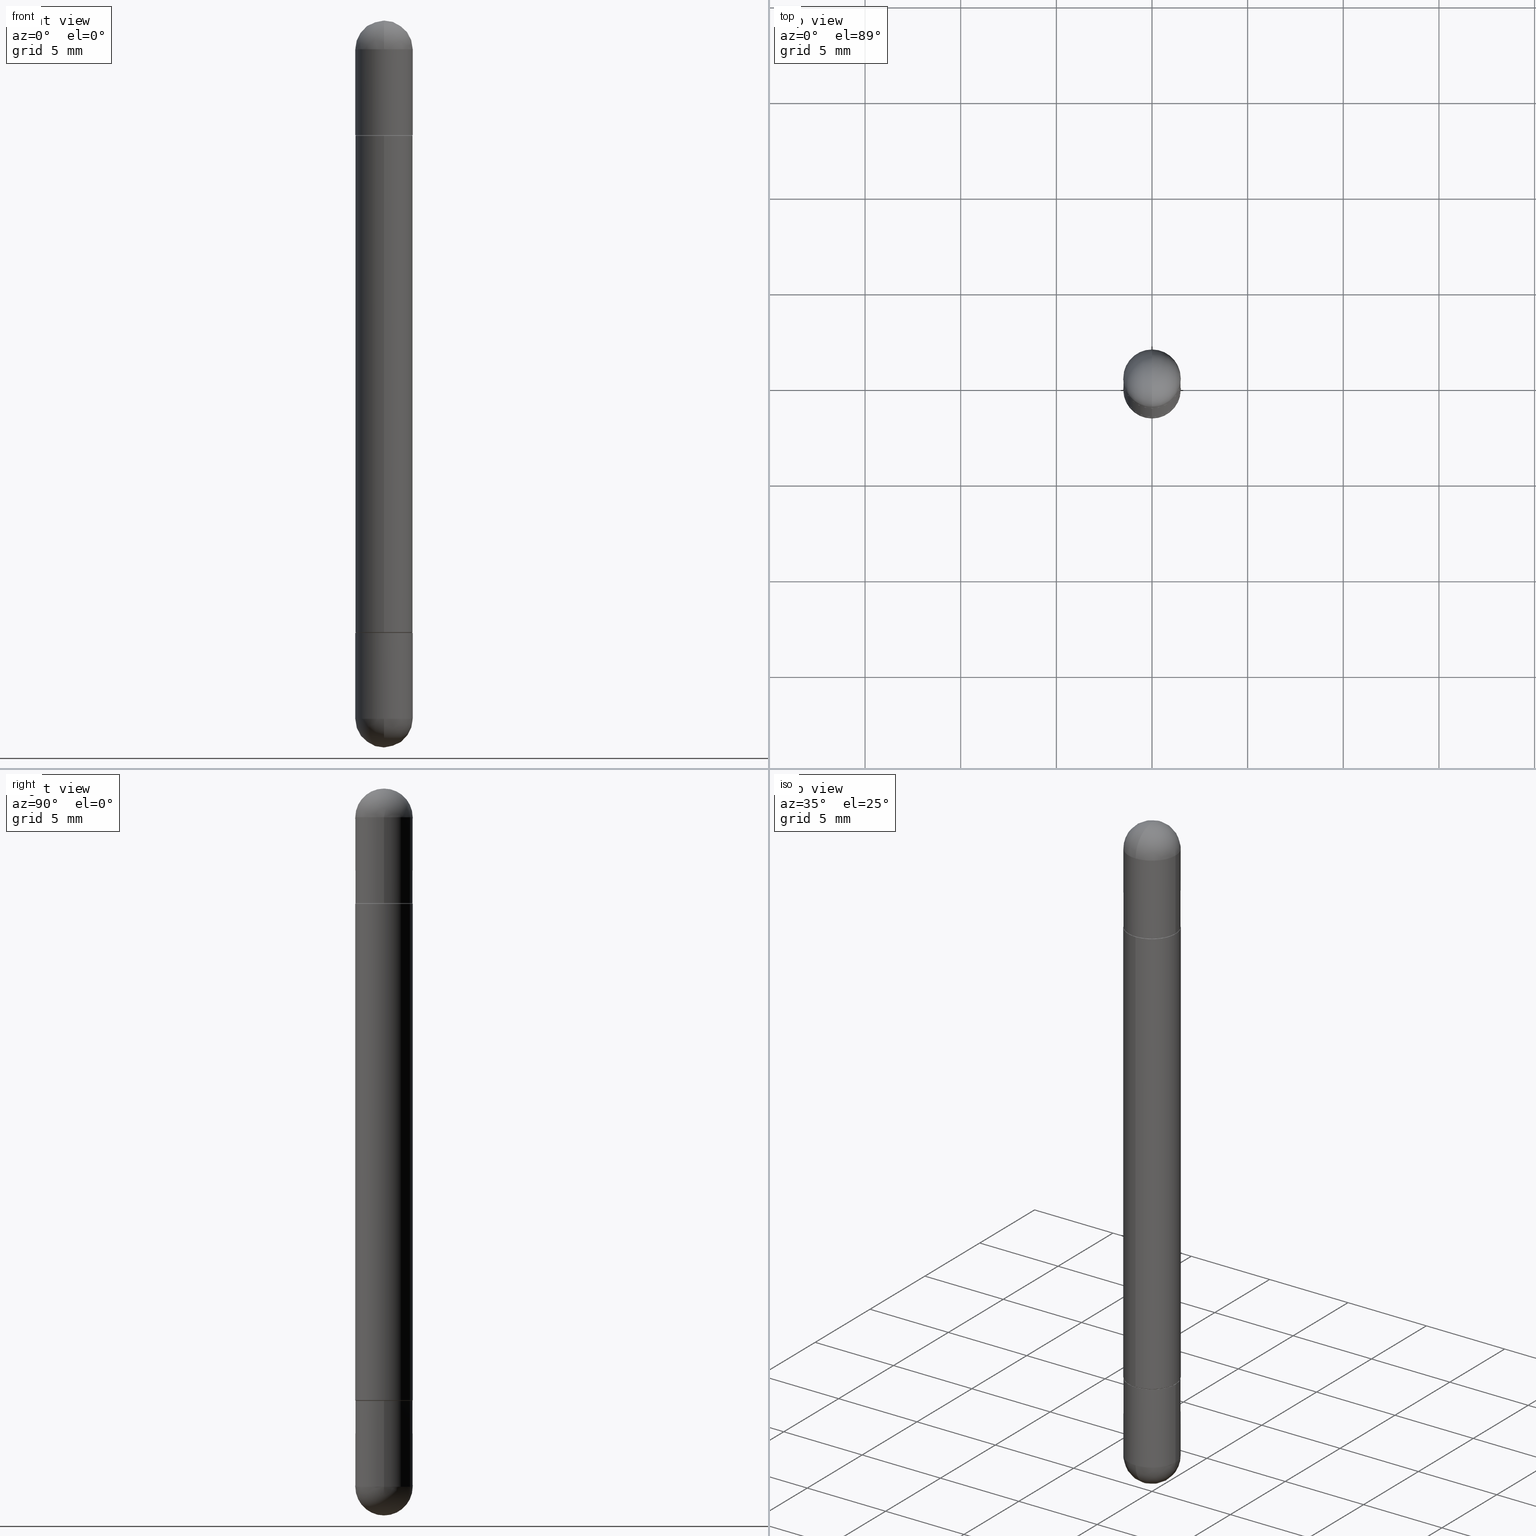
[diagram: canonical four-view strip — front | top / right | iso, engineering-drawing reading convention]
A machine part, canonical four-view strip (front | top / right | iso — engineering-drawing reading convention). The complete STEP part file that produces these views, byte-faithful:
ISO-10303-21;
HEADER;
FILE_DESCRIPTION (( 'STEP AP203' ),
    '1' );
FILE_NAME ('48951.STEP',
    '2024-03-01T12:46:38',
    ( '' ),
    ( '' ),
    'SwSTEP 2.0',
    'SolidWorks 2023',
    '' );
FILE_SCHEMA (( 'CONFIG_CONTROL_DESIGN' ));
ENDSEC;

DATA;
#1 = CLOSED_SHELL ( 'NONE', ( #82, #312, #528, #438, #799, #202 ) ) ;
#2 = CIRCLE ( 'NONE', #414, 0.05905000000000013710 ) ;
#3 = DIRECTION ( 'NONE',  ( 1.000000000000000000, -6.982962677686270655E-15, 0.000000000000000000 ) ) ;
#4 = AXIS2_PLACEMENT_3D ( 'NONE', #485, #425, #190 ) ;
#5 = EDGE_CURVE ( 'NONE', #430, #36, #602, .T. ) ;
#6 = DATE_TIME_ROLE ( 'creation_date' ) ;
#7 = FACE_OUTER_BOUND ( 'NONE', #288, .T. ) ;
#8 = PERSON_AND_ORGANIZATION ( #791, #520 ) ;
#9 = EDGE_CURVE ( 'NONE', #472, #302, #14, .T. ) ;
#10 = DIRECTION ( 'NONE',  ( -2.445468806185136597E-29, 3.491481338843145583E-15, -1.000000000000000000 ) ) ;
#11 = DIRECTION ( 'NONE',  ( 2.438088387897960049E-29, -3.491481338843145188E-15, -1.000000000000000000 ) ) ;
#12 = CC_DESIGN_PERSON_AND_ORGANIZATION_ASSIGNMENT ( #439, #700, ( #29 ) ) ;
#13 = CARTESIAN_POINT ( 'NONE',  ( -0.05905000000000001914, -4.288599812930171320E-15, -1.259899999999999798 ) ) ;
#14 = CIRCLE ( 'NONE', #476, 0.05804999999999999744 ) ;
#15 = AXIS2_PLACEMENT_3D ( 'NONE', #220, #669, #93 ) ;
#16 = AXIS2_PLACEMENT_3D ( 'NONE', #516, #219, #273 ) ;
#17 = CARTESIAN_POINT ( 'NONE',  ( 3.088015164772485743E-29, -4.381943779588710480E-15, -1.258900000000000130 ) ) ;
#18 = CARTESIAN_POINT ( 'NONE',  ( 3.088015164772485743E-29, -4.381943779588710480E-15, -0.2372000000000001330 ) ) ;
#19 = DIRECTION ( 'NONE',  ( 1.000000000000000000, -6.982962677686270655E-15, 0.000000000000000000 ) ) ;
#20 = EDGE_CURVE ( 'NONE', #92, #427, #290, .T. ) ;
#21 = LINE ( 'NONE', #780, #403 ) ;
#22 = CARTESIAN_POINT ( 'NONE',  ( 4.051124067684094106E-16, 0.05905000000000007465, -1.496099999999999985 ) ) ;
#23 = ORIENTED_EDGE ( 'NONE', *, *, #186, .T. ) ;
#24 = LINE ( 'NONE', #468, #251 ) ;
#25 = ORIENTED_EDGE ( 'NONE', *, *, #569, .F. ) ;
#26 = CYLINDRICAL_SURFACE ( 'NONE', #769, 0.05905000000000007465 ) ;
#27 = ADVANCED_FACE ( 'NONE', ( #75 ), #653, .T. ) ;
#28 = VECTOR ( 'NONE', #165, 39.37007874015748143 ) ;
#29 = PRODUCT_DEFINITION ( 'UNKNOWN', '', #458, #810 ) ;
#30 = CIRCLE ( 'NONE', #637, 0.05905000000000025506 ) ;
#31 = ORIENTED_EDGE ( 'NONE', *, *, #234, .F. ) ;
#32 = ORIENTED_EDGE ( 'NONE', *, *, #692, .F. ) ;
#33 =( NAMED_UNIT ( * ) PLANE_ANGLE_UNIT ( ) SI_UNIT ( $, .RADIAN. ) );
#34 = ORIENTED_EDGE ( 'NONE', *, *, #662, .F. ) ;
#35 = ORIENTED_EDGE ( 'NONE', *, *, #344, .F. ) ;
#36 = VERTEX_POINT ( 'NONE', #86 ) ;
#37 = CARTESIAN_POINT ( 'NONE',  ( -0.05905000000000001914, -4.288599812930171320E-15, -1.437049999999999939 ) ) ;
#38 = APPLICATION_CONTEXT ( 'configuration controlled 3d designs of mechanical parts and assemblies' ) ;
#39 = ORIENTED_EDGE ( 'NONE', *, *, #389, .T. ) ;
#40 = EDGE_LOOP ( 'NONE', ( #604, #366, #283, #45 ) ) ;
#41 = CLOSED_SHELL ( 'NONE', ( #151, #690, #332, #162, #697, #223, #399, #164 ) ) ;
#42 = DIRECTION ( 'NONE',  ( 0.000000000000000000, 0.000000000000000000, 1.000000000000000000 ) ) ;
#43 = AXIS2_PLACEMENT_3D ( 'NONE', #65, #451, #72 ) ;
#44 = CONICAL_SURFACE ( 'NONE', #801, 0.05804999999999999744, 0.7853981633976190313 ) ;
#45 = ORIENTED_EDGE ( 'NONE', *, *, #286, .F. ) ;
#46 = LOCAL_TIME ( 7, 46, 38.00000000000000000, #391 ) ;
#47 = VERTEX_POINT ( 'NONE', #719 ) ;
#48 = ADVANCED_FACE ( 'NONE', ( #526 ), #304, .F. ) ;
#49 = CARTESIAN_POINT ( 'NONE',  ( 3.514260947928350449E-29, -5.017433257984542594E-15, -1.437049999999999939 ) ) ;
#50 = VERTEX_POINT ( 'NONE', #796 ) ;
#51 = SPHERICAL_SURFACE ( 'NONE', #351, 0.05905000000000025506 ) ;
#52 = EDGE_LOOP ( 'NONE', ( #423, #589, #533, #681 ) ) ;
#53 = ORIENTED_EDGE ( 'NONE', *, *, #626, .F. ) ;
#54 = DIRECTION ( 'NONE',  ( 1.000000000000000000, -6.982962677686270655E-15, 0.000000000000000000 ) ) ;
#55 = LINE ( 'NONE', #462, #102 ) ;
#56 = ORIENTED_EDGE ( 'NONE', *, *, #364, .T. ) ;
#57 = CARTESIAN_POINT ( 'NONE',  ( 3.183141170014464762E-29, -5.491615626124592102E-15, -1.437049999999999939 ) ) ;
#58 = ADVANCED_FACE ( 'NONE', ( #737 ), #542, .T. ) ;
#59 = AXIS2_PLACEMENT_3D ( 'NONE', #158, #670, #170 ) ;
#60 = DIRECTION ( 'NONE',  ( 1.000000000000000000, -6.982962677686266711E-15, 4.876176775795935793E-29 ) ) ;
#61 = AXIS2_PLACEMENT_3D ( 'NONE', #188, #42, #748 ) ;
#62 = DIRECTION ( 'NONE',  ( -1.000000000000000000, 6.982962677686265922E-15, -4.883557194083112340E-29 ) ) ;
#63 = CC_DESIGN_APPROVAL ( #370, ( #135 ) ) ;
#64 = CALENDAR_DATE ( 2024, 1, 3 ) ;
#65 = CARTESIAN_POINT ( 'NONE',  ( 3.090468111920608031E-29, -4.385424551516256277E-15, -0.2362000000000003264 ) ) ;
#66 = DATE_AND_TIME ( #64, #119 ) ;
#67 = CARTESIAN_POINT ( 'NONE',  ( 0.05905000000000001914, -5.120519244513884944E-15, -0.05905000000000028976 ) ) ;
#68 = EDGE_CURVE ( 'NONE', #785, #313, #157, .T. ) ;
#69 = CARTESIAN_POINT ( 'NONE',  ( 3.081046148912652946E-29, -4.398917338808479031E-15, -1.259899999999999798 ) ) ;
#70 = DIRECTION ( 'NONE',  ( 1.000000000000000000, -6.860497997771530774E-15, -4.840798879624142912E-29 ) ) ;
#71 = AXIS2_PLACEMENT_3D ( 'NONE', #129, #248, #60 ) ;
#72 = DIRECTION ( 'NONE',  ( -6.982962677686265922E-15, -1.000000000000000000, -3.529519371659254850E-15 ) ) ;
#73 = EDGE_LOOP ( 'NONE', ( #236, #732 ) ) ;
#74 = AXIS2_PLACEMENT_3D ( 'NONE', #806, #434, #245 ) ;
#75 = FACE_OUTER_BOUND ( 'NONE', #490, .T. ) ;
#76 = CARTESIAN_POINT ( 'NONE',  ( 0.000000000000000000, 0.000000000000000000, -1.496100000000000207 ) ) ;
#77 = DIRECTION ( 'NONE',  ( -1.000000000000000000, 6.982962677686265922E-15, 4.883557194083112340E-29 ) ) ;
#78 = DIRECTION ( 'NONE',  ( 2.438088387897960049E-29, -3.491481338843145188E-15, 1.000000000000000000 ) ) ;
#79 = CARTESIAN_POINT ( 'NONE',  ( 3.514260947928350449E-29, -5.017433257984542594E-15, -0.05905000000000028976 ) ) ;
#80 = CARTESIAN_POINT ( 'NONE',  ( -4.053609834396568584E-16, -0.05805000000000438282, -0.2362000000000005484 ) ) ;
#81 = EDGE_CURVE ( 'NONE', #427, #356, #635, .T. ) ;
#82 = ADVANCED_FACE ( 'NONE', ( #612 ), #685, .T. ) ;
#83 = AXIS2_PLACEMENT_3D ( 'NONE', #566, #397, #716 ) ;
#84 = VECTOR ( 'NONE', #383, 39.37007874015748143 ) ;
#85 = AXIS2_PLACEMENT_3D ( 'NONE', #418, #109, #789 ) ;
#86 = CARTESIAN_POINT ( 'NONE',  ( 4.123439461174084467E-16, 0.05904999999999487742, -1.437050000000000161 ) ) ;
#87 = ORIENTED_EDGE ( 'NONE', *, *, #786, .T. ) ;
#88 = CARTESIAN_POINT ( 'NONE',  ( 4.123439461174084467E-16, 0.05904999999999487742, -0.05905000000000008159 ) ) ;
#89 = DIRECTION ( 'NONE',  ( -2.452947148123349933E-29, 3.480771927546834282E-15, -1.000000000000000000 ) ) ;
#90 = LINE ( 'NONE', #741, #507 ) ;
#91 = DIRECTION ( 'NONE',  ( 2.445468806185136597E-29, -3.491481338843145583E-15, 1.000000000000000000 ) ) ;
#92 = VERTEX_POINT ( 'NONE', #67 ) ;
#93 = DIRECTION ( 'NONE',  ( 1.000000000000000000, -6.982962677686266711E-15, 0.000000000000000000 ) ) ;
#94 = EDGE_CURVE ( 'NONE', #356, #313, #329, .T. ) ;
#95 = ADVANCED_FACE ( 'NONE', ( #206 ), #140, .T. ) ;
#96 = ORIENTED_EDGE ( 'NONE', *, *, #506, .T. ) ;
#97 = CYLINDRICAL_SURFACE ( 'NONE', #85, 0.05905000000000001914 ) ;
#98 = DIRECTION ( 'NONE',  ( 1.000000000000000000, -6.982962677686265922E-15, -4.883557194083112340E-29 ) ) ;
#99 = ORIENTED_EDGE ( 'NONE', *, *, #364, .F. ) ;
#100 = CONICAL_SURFACE ( 'NONE', #677, 0.05804999999999999744, 0.7853981633976190313 ) ;
#101 = EDGE_LOOP ( 'NONE', ( #657, #216, #674, #116, #105 ) ) ;
#102 = VECTOR ( 'NONE', #152, 39.37007874015748143 ) ;
#103 = DIRECTION ( 'NONE',  ( 1.000000000000000000, -6.982962677686270655E-15, 0.000000000000000000 ) ) ;
#104 = CC_DESIGN_APPROVAL ( #341, ( #458 ) ) ;
#105 = ORIENTED_EDGE ( 'NONE', *, *, #545, .T. ) ;
#106 = CARTESIAN_POINT ( 'NONE',  ( 4.051124067684401762E-16, 0.05904999999999747257, -0.7480500000000001037 ) ) ;
#107 = ORIENTED_EDGE ( 'NONE', *, *, #482, .F. ) ;
#108 = VERTEX_POINT ( 'NONE', #201 ) ;
#109 = DIRECTION ( 'NONE',  ( -2.445468806185136597E-29, 3.491481338843145583E-15, -1.000000000000000000 ) ) ;
#110 = CARTESIAN_POINT ( 'NONE',  ( 3.982519087706682190E-16, 0.05804999999999560512, -0.2362000000000001321 ) ) ;
#111 = CARTESIAN_POINT ( 'NONE',  ( 0.000000000000000000, 0.000000000000000000, -1.496100000000000207 ) ) ;
#112 = VERTEX_POINT ( 'NONE', #628 ) ;
#113 = EDGE_CURVE ( 'NONE', #360, #36, #146, .T. ) ;
#114 = ORIENTED_EDGE ( 'NONE', *, *, #344, .T. ) ;
#115 = CARTESIAN_POINT ( 'NONE',  ( -0.05905000000000001914, 4.195754854663392958E-16, -2.904631170795522943E-30 ) ) ;
#116 = ORIENTED_EDGE ( 'NONE', *, *, #706, .T. ) ;
#117 = AXIS2_PLACEMENT_3D ( 'NONE', #447, #646, #452 ) ;
#118 = CIRCLE ( 'NONE', #199, 0.05905000000000001914 ) ;
#119 = LOCAL_TIME ( 7, 46, 38.00000000000000000, #639 ) ;
#120 = CARTESIAN_POINT ( 'NONE',  ( 3.330070981488499955E-29, -5.694171829508798064E-15, -1.496100000000000207 ) ) ;
#121 = ORIENTED_EDGE ( 'NONE', *, *, #171, .T. ) ;
#122 = ORIENTED_EDGE ( 'NONE', *, *, #482, .T. ) ;
#123 = VERTEX_POINT ( 'NONE', #493 ) ;
#124 = DIMENSIONAL_EXPONENTS ( 1.000000000000000000, 0.000000000000000000, 0.000000000000000000, 0.000000000000000000, 0.000000000000000000, 0.000000000000000000, 0.000000000000000000 ) ;
#125 = DIRECTION ( 'NONE',  ( -2.452947148123349933E-29, 3.480771927546834282E-15, 1.000000000000000000 ) ) ;
#126 = EDGE_CURVE ( 'NONE', #746, #50, #2, .T. ) ;
#127 = ORIENTED_EDGE ( 'NONE', *, *, #179, .F. ) ;
#128 = FACE_OUTER_BOUND ( 'NONE', #309, .T. ) ;
#129 = CARTESIAN_POINT ( 'NONE',  ( 0.000000000000000000, 0.000000000000000000, 0.000000000000000000 ) ) ;
#130 = FACE_OUTER_BOUND ( 'NONE', #666, .T. ) ;
#131 = AXIS2_PLACEMENT_3D ( 'NONE', #634, #145, #774 ) ;
#132 = AXIS2_PLACEMENT_3D ( 'NONE', #269, #375, #441 ) ;
#133 = FACE_OUTER_BOUND ( 'NONE', #557, .T. ) ;
#134 = AXIS2_PLACEMENT_3D ( 'NONE', #233, #287, #730 ) ;
#135 = SECURITY_CLASSIFICATION ( '', '', #705 ) ;
#136 = EDGE_CURVE ( 'NONE', #153, #683, #214, .T. ) ;
#137 = FACE_OUTER_BOUND ( 'NONE', #465, .T. ) ;
#138 = FACE_OUTER_BOUND ( 'NONE', #798, .T. ) ;
#139 = DIRECTION ( 'NONE',  ( -6.982962677686265922E-15, -1.000000000000000000, -3.529519371659254850E-15 ) ) ;
#140 = CYLINDRICAL_SURFACE ( 'NONE', #71, 0.05905000000000001914 ) ;
#141 = PRODUCT_RELATED_PRODUCT_CATEGORY ( 'detail', '', ( #734 ) ) ;
#142 = DIRECTION ( 'NONE',  ( -2.445468806185136597E-29, 3.491481338843145583E-15, 1.000000000000000000 ) ) ;
#143 = DATE_AND_TIME ( #322, #723 ) ;
#144 =( CONVERSION_BASED_UNIT ( 'INCH', #711 ) LENGTH_UNIT ( ) NAMED_UNIT ( #124 ) );
#145 = DIRECTION ( 'NONE',  ( 2.445468806185136597E-29, -3.491481338843145583E-15, 1.000000000000000000 ) ) ;
#146 = CIRCLE ( 'NONE', #393, 0.05905000000000001914 ) ;
#147 = DIRECTION ( 'NONE',  ( 2.445468806185136597E-29, -3.491481338843145583E-15, 1.000000000000000000 ) ) ;
#148 = VECTOR ( 'NONE', #739, 39.37007874015748143 ) ;
#149 = FACE_OUTER_BOUND ( 'NONE', #623, .T. ) ;
#150 = SPHERICAL_SURFACE ( 'NONE', #544, 0.05905000000000025506 ) ;
#151 = ADVANCED_FACE ( 'NONE', ( #572 ), #529, .T. ) ;
#152 = DIRECTION ( 'NONE',  ( -4.937700262165390546E-15, -0.7071067811866658115, 0.7071067811864292230 ) ) ;
#153 = VERTEX_POINT ( 'NONE', #440 ) ;
#154 = CARTESIAN_POINT ( 'NONE',  ( 3.514260947928350449E-29, -5.017433257984542594E-15, -1.437049999999999939 ) ) ;
#155 = DIRECTION ( 'NONE',  ( -2.445468806185136877E-29, 3.491481338843145188E-15, -1.000000000000000000 ) ) ;
#156 = ORIENTED_EDGE ( 'NONE', *, *, #136, .F. ) ;
#157 = CIRCLE ( 'NONE', #464, 0.05905000000000025506 ) ;
#158 = CARTESIAN_POINT ( 'NONE',  ( 0.000000000000000000, 0.000000000000000000, -1.496100000000000207 ) ) ;
#159 = AXIS2_PLACEMENT_3D ( 'NONE', #259, #770, #645 ) ;
#160 = AXIS2_PLACEMENT_3D ( 'NONE', #353, #297, #183 ) ;
#161 = VERTEX_POINT ( 'NONE', #701 ) ;
#162 = ADVANCED_FACE ( 'NONE', ( #133 ), #382, .F. ) ;
#163 = DATE_AND_TIME ( #168, #694 ) ;
#164 = ADVANCED_FACE ( 'NONE', ( #138 ), #386, .F. ) ;
#165 = DIRECTION ( 'NONE',  ( 4.851104656541791790E-15, 0.7071067811866706965, -0.7071067811864243380 ) ) ;
#166 = PRODUCT_DEFINITION_SHAPE ( 'NONE', 'NONE',  #29 ) ;
#167 = DIRECTION ( 'NONE',  ( 1.000000000000000000, -6.982962677686270655E-15, 0.000000000000000000 ) ) ;
#168 = CALENDAR_DATE ( 2024, 1, 3 ) ;
#169 = CC_DESIGN_DATE_AND_TIME_ASSIGNMENT ( #648, #333, ( #135 ) ) ;
#170 = DIRECTION ( 'NONE',  ( -6.982962677686265922E-15, -1.000000000000000000, -4.626330217890363814E-15 ) ) ;
#171 = EDGE_CURVE ( 'NONE', #50, #746, #349, .T. ) ;
#172 = VERTEX_POINT ( 'NONE', #665 ) ;
#173 = ORIENTED_EDGE ( 'NONE', *, *, #755, .F. ) ;
#174 = CARTESIAN_POINT ( 'NONE',  ( 4.124700581087689546E-16, 0.05804999999999560512, -1.259900000000000020 ) ) ;
#175 = DIRECTION ( 'NONE',  ( 1.000000000000000000, -6.860497997771530774E-15, -4.840798879624142912E-29 ) ) ;
#176 = CARTESIAN_POINT ( 'NONE',  ( 3.183141170014464762E-29, -5.491615626124592102E-15, -0.05905000000000028976 ) ) ;
#177 = ORIENTED_EDGE ( 'NONE', *, *, #94, .T. ) ;
#178 = AXIS2_PLACEMENT_3D ( 'NONE', #310, #549, #818 ) ;
#179 = EDGE_CURVE ( 'NONE', #205, #172, #90, .T. ) ;
#180 = ORIENTED_EDGE ( 'NONE', *, *, #682, .F. ) ;
#181 = VECTOR ( 'NONE', #610, 39.37007874015748143 ) ;
#182 = FACE_OUTER_BOUND ( 'NONE', #618, .T. ) ;
#183 = DIRECTION ( 'NONE',  ( 1.000000000000000000, -6.982962677686270655E-15, 0.000000000000000000 ) ) ;
#184 = DIRECTION ( 'NONE',  ( -1.000000000000000000, 0.000000000000000000, 0.000000000000000000 ) ) ;
#185 = ORIENTED_EDGE ( 'NONE', *, *, #499, .F. ) ;
#186 = EDGE_CURVE ( 'NONE', #47, #376, #560, .T. ) ;
#187 = ORIENTED_EDGE ( 'NONE', *, *, #282, .T. ) ;
#188 = CARTESIAN_POINT ( 'NONE',  ( 0.000000000000000000, 0.000000000000000000, -0.7480500000000001037 ) ) ;
#189 = DIRECTION ( 'NONE',  ( -2.452947148123349933E-29, 3.480771927546834282E-15, -1.000000000000000000 ) ) ;
#190 = DIRECTION ( 'NONE',  ( -1.000000000000000000, 0.000000000000000000, 0.000000000000000000 ) ) ;
#191 = DIRECTION ( 'NONE',  ( 6.982962677686265922E-15, 1.000000000000000000, 3.469747663417762014E-15 ) ) ;
#192 = DIRECTION ( 'NONE',  ( -0.000000000000000000, -0.000000000000000000, -1.000000000000000000 ) ) ;
#193 = DIRECTION ( 'NONE',  ( 6.982962677686266711E-15, 1.000000000000000000, 0.000000000000000000 ) ) ;
#194 = CARTESIAN_POINT ( 'NONE',  ( 3.088015164772485743E-29, -4.381943779588710480E-15, -0.2372000000000001330 ) ) ;
#195 = VERTEX_POINT ( 'NONE', #405 ) ;
#196 = APPROVAL_ROLE ( '' ) ;
#197 = CLOSED_SHELL ( 'NONE', ( #788, #487, #450, #48, #584 ) ) ;
#198 = AXIS2_PLACEMENT_3D ( 'NONE', #708, #255, #139 ) ;
#199 = AXIS2_PLACEMENT_3D ( 'NONE', #524, #271, #167 ) ;
#200 = DIRECTION ( 'NONE',  ( 2.452947148123349933E-29, -3.480771927546834282E-15, 1.000000000000000000 ) ) ;
#201 = CARTESIAN_POINT ( 'NONE',  ( 4.051124067684407185E-16, 0.05904999999999575866, -0.2371999999999999387 ) ) ;
#202 = ADVANCED_FACE ( 'NONE', ( #471 ), #463, .T. ) ;
#203 = DIRECTION ( 'NONE',  ( -6.982962677686265922E-15, -1.000000000000000000, -3.469747663417769114E-15 ) ) ;
#204 = PERSON_AND_ORGANIZATION ( #791, #520 ) ;
#205 = VERTEX_POINT ( 'NONE', #80 ) ;
#206 = FACE_OUTER_BOUND ( 'NONE', #548, .T. ) ;
#207 = CARTESIAN_POINT ( 'NONE',  ( 3.514260947928350449E-29, -5.017433257984542594E-15, -0.05905000000000028976 ) ) ;
#208 = MANIFOLD_SOLID_BREP ( 'Mirror4[4]', #676 ) ;
#209 = MANIFOLD_SOLID_BREP ( 'Combine1', #41 ) ;
#210 = CARTESIAN_POINT ( 'NONE',  ( -4.123439461173745257E-16, -0.05905000000000007465, -1.496100000000000430 ) ) ;
#211 = PERSON_AND_ORGANIZATION_ROLE ( 'design_supplier' ) ;
#212 = DIRECTION ( 'NONE',  ( 2.445468806185136597E-29, -3.491481338843145583E-15, 1.000000000000000000 ) ) ;
#213 = AXIS2_PLACEMENT_3D ( 'NONE', #754, #254, #775 ) ;
#214 = LINE ( 'NONE', #326, #651 ) ;
#215 = CONICAL_SURFACE ( 'NONE', #680, 0.05804999999999999744, 0.7853981633976190313 ) ;
#216 = ORIENTED_EDGE ( 'NONE', *, *, #81, .F. ) ;
#217 = PERSON_AND_ORGANIZATION_ROLE ( 'classification_officer' ) ;
#218 = DIRECTION ( 'NONE',  ( -2.445468806185136597E-29, 3.491481338843145583E-15, 1.000000000000000000 ) ) ;
#219 = DIRECTION ( 'NONE',  ( 1.000000000000000000, -6.982962677686265922E-15, -4.883557194083112340E-29 ) ) ;
#220 = CARTESIAN_POINT ( 'NONE',  ( 0.000000000000000000, 0.000000000000000000, -1.496100000000000207 ) ) ;
#221 = CARTESIAN_POINT ( 'NONE',  ( -0.05905000000000001914, -4.303062891628101254E-15, -0.2362000000000003264 ) ) ;
#222 = CIRCLE ( 'NONE', #198, 0.05804999999999999744 ) ;
#223 = ADVANCED_FACE ( 'NONE', ( #717 ), #26, .T. ) ;
#224 = AXIS2_PLACEMENT_3D ( 'NONE', #79, #267, #278 ) ;
#225 = CARTESIAN_POINT ( 'NONE',  ( 0.000000000000000000, 0.000000000000000000, -1.496100000000000207 ) ) ;
#226 = APPROVAL_PERSON_ORGANIZATION ( #580, #370, #725 ) ;
#227 = SPHERICAL_SURFACE ( 'NONE', #691, 0.05905000000000025506 ) ;
#228 = ORIENTED_EDGE ( 'NONE', *, *, #247, .F. ) ;
#229 = ADVANCED_FACE ( 'NONE', ( #348 ), #412, .F. ) ;
#230 = DIRECTION ( 'NONE',  ( 2.452947148123349933E-29, -3.480771927546834282E-15, 1.000000000000000000 ) ) ;
#231 = DIRECTION ( 'NONE',  ( -2.445468806185136597E-29, 3.491481338843145583E-15, 1.000000000000000000 ) ) ;
#232 = VECTOR ( 'NONE', #325, 39.37007874015748143 ) ;
#233 = CARTESIAN_POINT ( 'NONE',  ( 3.090468111920608031E-29, -4.385424551516256277E-15, -1.259899999999999798 ) ) ;
#234 = EDGE_CURVE ( 'NONE', #302, #161, #24, .T. ) ;
#235 = LINE ( 'NONE', #538, #148 ) ;
#236 = ORIENTED_EDGE ( 'NONE', *, *, #545, .F. ) ;
#237 = EDGE_CURVE ( 'NONE', #313, #92, #367, .T. ) ;
#238 = AXIS2_PLACEMENT_3D ( 'NONE', #809, #750, #193 ) ;
#239 = CARTESIAN_POINT ( 'NONE',  ( 4.123439461174084467E-16, 0.05904999999999487742, -0.05905000000000008159 ) ) ;
#240 = EDGE_LOOP ( 'NONE', ( #23, #87, #693, #107 ) ) ;
#241 = CIRCLE ( 'NONE', #477, 0.05905000000000001914 ) ;
#242 = AXIS2_PLACEMENT_3D ( 'NONE', #509, #212, #445 ) ;
#243 = DIRECTION ( 'NONE',  ( -6.982962677686266711E-15, -1.000000000000000000, 0.000000000000000000 ) ) ;
#244 = DIRECTION ( 'NONE',  ( -2.445468806185136597E-29, 3.491481338843145583E-15, -1.000000000000000000 ) ) ;
#245 = DIRECTION ( 'NONE',  ( 1.000000000000000000, -6.982962677686270655E-15, 0.000000000000000000 ) ) ;
#246 = ORIENTED_EDGE ( 'NONE', *, *, #655, .F. ) ;
#247 = EDGE_CURVE ( 'NONE', #36, #562, #606, .T. ) ;
#248 = DIRECTION ( 'NONE',  ( -2.445468806185136597E-29, 3.491481338843145583E-15, 1.000000000000000000 ) ) ;
#249 = PLANE ( 'NONE',  #415 ) ;
#250 = EDGE_LOOP ( 'NONE', ( #647, #343, #122, #311 ) ) ;
#251 = VECTOR ( 'NONE', #336, 39.37007874015748143 ) ;
#252 = ORIENTED_EDGE ( 'NONE', *, *, #597, .F. ) ;
#253 = VECTOR ( 'NONE', #561, 39.37007874015748143 ) ;
#254 = DIRECTION ( 'NONE',  ( 2.445468806185136597E-29, -3.491481338843145583E-15, 1.000000000000000000 ) ) ;
#255 = DIRECTION ( 'NONE',  ( 2.452947148123349933E-29, -3.480771927546834282E-15, 1.000000000000000000 ) ) ;
#256 = FACE_OUTER_BOUND ( 'NONE', #250, .T. ) ;
#257 = LINE ( 'NONE', #577, #232 ) ;
#258 = APPROVAL_ROLE ( '' ) ;
#259 = CARTESIAN_POINT ( 'NONE',  ( 3.183141170014464762E-29, -5.491615626124592102E-15, -1.437049999999999939 ) ) ;
#260 = EDGE_CURVE ( 'NONE', #472, #535, #591, .T. ) ;
#261 = CIRCLE ( 'NONE', #117, 0.05905000000000001914 ) ;
#262 = CARTESIAN_POINT ( 'NONE',  ( 3.090468111920608031E-29, -4.385424551516256277E-15, -1.259899999999999798 ) ) ;
#263 = AXIS2_PLACEMENT_3D ( 'NONE', #767, #633, #643 ) ;
#264 = DIRECTION ( 'NONE',  ( -6.982962677686265922E-15, -1.000000000000000000, -3.529519371659254850E-15 ) ) ;
#265 = CARTESIAN_POINT ( 'NONE',  ( 3.090468111920608031E-29, -4.385424551516256277E-15, -0.2362000000000003264 ) ) ;
#266 = ADVANCED_FACE ( 'NONE', ( #583 ), #150, .T. ) ;
#267 = DIRECTION ( 'NONE',  ( 2.445468806185136597E-29, -3.491481338843145583E-15, 1.000000000000000000 ) ) ;
#268 = CC_DESIGN_PERSON_AND_ORGANIZATION_ASSIGNMENT ( #501, #512, ( #458 ) ) ;
#269 = CARTESIAN_POINT ( 'NONE',  ( 3.088015164772485743E-29, -4.381943779588710480E-15, -0.2372000000000001330 ) ) ;
#270 = DIRECTION ( 'NONE',  ( -1.000000000000000000, 7.105427357601001070E-15, -4.926315508542082329E-29 ) ) ;
#271 = DIRECTION ( 'NONE',  ( -2.445468806185136597E-29, 3.491481338843145583E-15, 1.000000000000000000 ) ) ;
#272 = CIRCLE ( 'NONE', #292, 0.05905000000000025506 ) ;
#273 = DIRECTION ( 'NONE',  ( 6.982962677686265922E-15, 1.000000000000000000, 3.469747663417762014E-15 ) ) ;
#274 = AXIS2_PLACEMENT_3D ( 'NONE', #459, #70, #578 ) ;
#275 = DIRECTION ( 'NONE',  ( -6.982962677686265922E-15, -1.000000000000000000, -3.529519371659254850E-15 ) ) ;
#276 = APPROVAL_PERSON_ORGANIZATION ( #709, #611, #196 ) ;
#277 = DIRECTION ( 'NONE',  ( -2.452947148123349933E-29, 3.480771927546834282E-15, -1.000000000000000000 ) ) ;
#278 = DIRECTION ( 'NONE',  ( 1.000000000000000000, -6.982962677686270655E-15, 0.000000000000000000 ) ) ;
#279 = ORIENTED_EDGE ( 'NONE', *, *, #402, .F. ) ;
#280 = DIRECTION ( 'NONE',  ( 2.445468806185136597E-29, -3.491481338843145583E-15, 1.000000000000000000 ) ) ;
#281 = DIRECTION ( 'NONE',  ( -2.452947148123350213E-29, 3.480771927546833888E-15, -1.000000000000000000 ) ) ;
#282 = EDGE_CURVE ( 'NONE', #108, #401, #21, .T. ) ;
#283 = ORIENTED_EDGE ( 'NONE', *, *, #113, .F. ) ;
#284 = DIRECTION ( 'NONE',  ( -6.982962677686265922E-15, -1.000000000000000000, -3.529519371659254850E-15 ) ) ;
#285 = CARTESIAN_POINT ( 'NONE',  ( 3.982519087706682190E-16, 0.05804999999999560512, -0.2362000000000001321 ) ) ;
#286 = EDGE_CURVE ( 'NONE', #802, #360, #702, .T. ) ;
#287 = DIRECTION ( 'NONE',  ( -2.452947148123349933E-29, 3.480771927546834282E-15, 1.000000000000000000 ) ) ;
#288 = EDGE_LOOP ( 'NONE', ( #173, #35, #625, #553, #473 ) ) ;
#289 = DIRECTION ( 'NONE',  ( 2.452947148123349933E-29, -3.480771927546834282E-15, 1.000000000000000000 ) ) ;
#290 = CIRCLE ( 'NONE', #131, 0.05905000000000001914 ) ;
#291 = DIRECTION ( 'NONE',  ( 2.445468806185136597E-29, -3.491481338843145583E-15, 1.000000000000000000 ) ) ;
#292 = AXIS2_PLACEMENT_3D ( 'NONE', #636, #77, #324 ) ;
#293 = VECTOR ( 'NONE', #155, 39.37007874015748143 ) ;
#294 = ORIENTED_EDGE ( 'NONE', *, *, #569, .T. ) ;
#295 = DIRECTION ( 'NONE',  ( -2.452947148123349933E-29, 3.480771927546833888E-15, 1.000000000000000000 ) ) ;
#296 = ORIENTED_EDGE ( 'NONE', *, *, #514, .F. ) ;
#297 = DIRECTION ( 'NONE',  ( 2.445468806185136597E-29, -3.491481338843145583E-15, 1.000000000000000000 ) ) ;
#298 = EDGE_CURVE ( 'NONE', #161, #50, #622, .T. ) ;
#299 = EDGE_CURVE ( 'NONE', #153, #605, #241, .T. ) ;
#300 = CARTESIAN_POINT ( 'NONE',  ( 3.183141170014464762E-29, -5.491615626124592102E-15, -0.05905000000000028976 ) ) ;
#301 = AXIS2_PLACEMENT_3D ( 'NONE', #374, #500, #764 ) ;
#302 = VERTEX_POINT ( 'NONE', #395 ) ;
#303 = AXIS2_PLACEMENT_3D ( 'NONE', #18, #230, #663 ) ;
#304 = PLANE ( 'NONE',  #442 ) ;
#305 = ORIENTED_EDGE ( 'NONE', *, *, #522, .T. ) ;
#306 = CARTESIAN_POINT ( 'NONE',  ( 0.05905000000000001914, -4.811261284925853162E-15, -0.2362000000000003264 ) ) ;
#307 = ORIENTED_EDGE ( 'NONE', *, *, #186, .F. ) ;
#308 = EDGE_CURVE ( 'NONE', #735, #205, #222, .T. ) ;
#309 = EDGE_LOOP ( 'NONE', ( #492, #369, #793, #228 ) ) ;
#310 = CARTESIAN_POINT ( 'NONE',  ( 3.090468111920608031E-29, -4.385424551516256277E-15, -1.259899999999999798 ) ) ;
#311 = ORIENTED_EDGE ( 'NONE', *, *, #126, .F. ) ;
#312 = ADVANCED_FACE ( 'NONE', ( #641 ), #800, .T. ) ;
#313 = VERTEX_POINT ( 'NONE', #387 ) ;
#314 = CARTESIAN_POINT ( 'NONE',  ( 3.090468111920608031E-29, -4.385424551516256277E-15, -1.259899999999999798 ) ) ;
#315 = ORIENTED_EDGE ( 'NONE', *, *, #282, .F. ) ;
#316 = PERSON_AND_ORGANIZATION_ROLE ( 'design_owner' ) ;
#317 = CIRCLE ( 'NONE', #756, 0.05804999999999999744 ) ;
#318 = CC_DESIGN_APPROVAL ( #611, ( #29 ) ) ;
#319 = DIRECTION ( 'NONE',  ( -2.445468806185136877E-29, 3.491481338843145188E-15, -1.000000000000000000 ) ) ;
#320 = SPHERICAL_SURFACE ( 'NONE', #159, 0.05905000000000025506 ) ;
#321 = DIRECTION ( 'NONE',  ( 1.000000000000000000, 0.000000000000000000, 0.000000000000000000 ) ) ;
#322 = CALENDAR_DATE ( 2024, 1, 3 ) ;
#323 = EDGE_CURVE ( 'NONE', #785, #427, #272, .T. ) ;
#324 = DIRECTION ( 'NONE',  ( -6.982962677686266711E-15, -1.000000000000000000, 0.000000000000000000 ) ) ;
#325 = DIRECTION ( 'NONE',  ( -2.445468806185136877E-29, 3.491481338843145188E-15, 1.000000000000000000 ) ) ;
#326 = CARTESIAN_POINT ( 'NONE',  ( 0.05905000000000001914, -4.123439461173741806E-16, -1.496100000000000207 ) ) ;
#327 = FACE_OUTER_BOUND ( 'NONE', #363, .T. ) ;
#328 = ORIENTED_EDGE ( 'NONE', *, *, #126, .T. ) ;
#329 = CIRCLE ( 'NONE', #213, 0.05905000000000001914 ) ;
#330 = CIRCLE ( 'NONE', #607, 0.05905000000000001914 ) ;
#331 = DATE_AND_TIME ( #650, #46 ) ;
#332 = ADVANCED_FACE ( 'NONE', ( #130 ), #100, .T. ) ;
#333 = DATE_TIME_ROLE ( 'classification_date' ) ;
#334 = ADVANCED_FACE ( 'NONE', ( #335 ), #320, .T. ) ;
#335 = FACE_OUTER_BOUND ( 'NONE', #40, .T. ) ;
#336 = DIRECTION ( 'NONE',  ( -4.937700262165390546E-15, -0.7071067811866658115, -0.7071067811864292230 ) ) ;
#337 = ORIENTED_EDGE ( 'NONE', *, *, #9, .T. ) ;
#338 =( LENGTH_UNIT ( ) NAMED_UNIT ( * ) SI_UNIT ( $, .METRE. ) );
#339 = AXIS2_PLACEMENT_3D ( 'NONE', #667, #91, #103 ) ;
#340 = APPROVAL_STATUS ( 'not_yet_approved' ) ;
#341 = APPROVAL ( #443, 'UNSPECIFIED' ) ;
#342 = DIRECTION ( 'NONE',  ( 1.000000000000000000, -6.982962677686266711E-15, 0.000000000000000000 ) ) ;
#343 = ORIENTED_EDGE ( 'NONE', *, *, #778, .T. ) ;
#344 = EDGE_CURVE ( 'NONE', #605, #123, #377, .T. ) ;
#345 = CC_DESIGN_PERSON_AND_ORGANIZATION_ASSIGNMENT ( #392, #217, ( #135 ) ) ;
#346 = EDGE_CURVE ( 'NONE', #205, #735, #317, .T. ) ;
#347 = CARTESIAN_POINT ( 'NONE',  ( 3.081046148912652946E-29, -4.398917338808479031E-15, -1.259899999999999798 ) ) ;
#348 = FACE_OUTER_BOUND ( 'NONE', #453, .T. ) ;
#349 = CIRCLE ( 'NONE', #812, 0.05905000000000013710 ) ;
#350 = ORIENTED_EDGE ( 'NONE', *, *, #247, .T. ) ;
#351 = AXIS2_PLACEMENT_3D ( 'NONE', #176, #814, #191 ) ;
#352 = ADVANCED_FACE ( 'NONE', ( #7 ), #515, .T. ) ;
#353 = CARTESIAN_POINT ( 'NONE',  ( 3.081046148912652946E-29, -4.398917338808479031E-15, -0.2362000000000003264 ) ) ;
#354 = CARTESIAN_POINT ( 'NONE',  ( 3.090468111920608031E-29, -4.385424551516256277E-15, -0.2362000000000003264 ) ) ;
#355 = DIRECTION ( 'NONE',  ( -6.982962677686265922E-15, -1.000000000000000000, -3.469747663417769114E-15 ) ) ;
#356 = VERTEX_POINT ( 'NONE', #664 ) ;
#357 = ORIENTED_EDGE ( 'NONE', *, *, #286, .T. ) ;
#358 = DIRECTION ( 'NONE',  ( 4.851104656541791790E-15, 0.7071067811866706965, -0.7071067811864243380 ) ) ;
#359 = ORIENTED_EDGE ( 'NONE', *, *, #94, .F. ) ;
#360 = VERTEX_POINT ( 'NONE', #598 ) ;
#361 = ORIENTED_EDGE ( 'NONE', *, *, #596, .F. ) ;
#362 = EDGE_LOOP ( 'NONE', ( #480, #99, #373, #121 ) ) ;
#363 = EDGE_LOOP ( 'NONE', ( #511, #608 ) ) ;
#364 = EDGE_CURVE ( 'NONE', #161, #535, #620, .T. ) ;
#365 = FACE_OUTER_BOUND ( 'NONE', #624, .T. ) ;
#366 = ORIENTED_EDGE ( 'NONE', *, *, #5, .T. ) ;
#367 = CIRCLE ( 'NONE', #466, 0.05905000000000001914 ) ;
#368 = AXIS2_PLACEMENT_3D ( 'NONE', #552, #758, #203 ) ;
#369 = ORIENTED_EDGE ( 'NONE', *, *, #803, .T. ) ;
#370 = APPROVAL ( #340, 'UNSPECIFIED' ) ;
#371 = ORIENTED_EDGE ( 'NONE', *, *, #655, .T. ) ;
#372 = DIRECTION ( 'NONE',  ( -4.937700262165390546E-15, -0.7071067811866658115, -0.7071067811864292230 ) ) ;
#373 = ORIENTED_EDGE ( 'NONE', *, *, #298, .T. ) ;
#374 = CARTESIAN_POINT ( 'NONE',  ( 3.090468111920608031E-29, -4.385424551516256277E-15, -1.259899999999999798 ) ) ;
#375 = DIRECTION ( 'NONE',  ( 2.452947148123349933E-29, -3.480771927546834282E-15, 1.000000000000000000 ) ) ;
#376 = VERTEX_POINT ( 'NONE', #703 ) ;
#377 = CIRCLE ( 'NONE', #811, 0.05905000000000001914 ) ;
#378 = EDGE_CURVE ( 'NONE', #504, #436, #261, .T. ) ;
#379 = AXIS2_PLACEMENT_3D ( 'NONE', #194, #486, #355 ) ;
#380 = AXIS2_PLACEMENT_3D ( 'NONE', #642, #698, #321 ) ;
#381 = EDGE_CURVE ( 'NONE', #753, #609, #575, .T. ) ;
#382 = PLANE ( 'NONE',  #444 ) ;
#383 = DIRECTION ( 'NONE',  ( -2.452947148123350213E-29, 3.480771927546833888E-15, -1.000000000000000000 ) ) ;
#384 = MECHANICAL_CONTEXT ( 'NONE', #38, 'mechanical' ) ;
#385 = CARTESIAN_POINT ( 'NONE',  ( 3.090468111920608031E-29, -4.385424551516256277E-15, -0.2362000000000003264 ) ) ;
#386 = PLANE ( 'NONE',  #586 ) ;
#387 = CARTESIAN_POINT ( 'NONE',  ( -4.051124067683763770E-16, -0.05905000000000539678, -0.05905000000000049099 ) ) ;
#388 = CALENDAR_DATE ( 2024, 1, 3 ) ;
#389 = EDGE_CURVE ( 'NONE', #562, #753, #540, .T. ) ;
#390 = DIRECTION ( 'NONE',  ( 1.000000000000000000, -6.982962677686270655E-15, 0.000000000000000000 ) ) ;
#391 = COORDINATED_UNIVERSAL_TIME_OFFSET ( 5, 0, .BEHIND. ) ;
#392 = PERSON_AND_ORGANIZATION ( #791, #520 ) ;
#393 = AXIS2_PLACEMENT_3D ( 'NONE', #49, #218, #54 ) ;
#394 = AXIS2_PLACEMENT_3D ( 'NONE', #521, #11, #573 ) ;
#395 = CARTESIAN_POINT ( 'NONE',  ( -4.053609834396568584E-16, -0.05805000000000438282, -0.2362000000000005484 ) ) ;
#396 = LINE ( 'NONE', #656, #659 ) ;
#397 = DIRECTION ( 'NONE',  ( -2.445468806185136597E-29, 3.491481338843145583E-15, 1.000000000000000000 ) ) ;
#398 = CARTESIAN_POINT ( 'NONE',  ( 3.183141170014464762E-29, -5.491615626124592102E-15, -0.05905000000000028976 ) ) ;
#399 = ADVANCED_FACE ( 'NONE', ( #256 ), #44, .T. ) ;
#400 = DIRECTION ( 'NONE',  ( -2.452947148123350213E-29, 3.480771927546833888E-15, -1.000000000000000000 ) ) ;
#401 = VERTEX_POINT ( 'NONE', #106 ) ;
#402 = EDGE_CURVE ( 'NONE', #108, #172, #564, .T. ) ;
#403 = VECTOR ( 'NONE', #281, 39.37007874015748143 ) ;
#404 = VECTOR ( 'NONE', #673, 39.37007874015748143 ) ;
#405 = CARTESIAN_POINT ( 'NONE',  ( -4.051124067683763770E-16, -0.05905000000000539678, -0.05905000000000049099 ) ) ;
#406 = CARTESIAN_POINT ( 'NONE',  ( 3.330070981488499955E-29, -5.694171829508798064E-15, -3.414809992080329023E-17 ) ) ;
#407 = CARTESIAN_POINT ( 'NONE',  ( 0.000000000000000000, 0.000000000000000000, -1.496100000000000207 ) ) ;
#408 = ORIENTED_EDGE ( 'NONE', *, *, #260, .T. ) ;
#409 = APPROVAL_DATE_TIME ( #163, #370 ) ;
#410 = APPLICATION_PROTOCOL_DEFINITION ( 'international standard', 'config_control_design', 1994, #38 ) ;
#411 = ORIENTED_EDGE ( 'NONE', *, *, #378, .T. ) ;
#412 = PLANE ( 'NONE',  #518 ) ;
#413 = DIRECTION ( 'NONE',  ( 6.860497997771530774E-15, 1.000000000000000000, 0.000000000000000000 ) ) ;
#414 = AXIS2_PLACEMENT_3D ( 'NONE', #433, #125, #768 ) ;
#415 = AXIS2_PLACEMENT_3D ( 'NONE', #494, #745, #614 ) ;
#416 = LOCAL_TIME ( 7, 46, 38.00000000000000000, #449 ) ;
#417 = ORIENTED_EDGE ( 'NONE', *, *, #662, .T. ) ;
#418 = CARTESIAN_POINT ( 'NONE',  ( 0.000000000000000000, 0.000000000000000000, -1.496100000000000207 ) ) ;
#419 = EDGE_LOOP ( 'NONE', ( #551, #672, #687, #127 ) ) ;
#420 = ORIENTED_EDGE ( 'NONE', *, *, #766, .T. ) ;
#421 = ORIENTED_EDGE ( 'NONE', *, *, #778, .F. ) ;
#422 = DIRECTION ( 'NONE',  ( 1.000000000000000000, -6.982962677686270655E-15, 0.000000000000000000 ) ) ;
#423 = ORIENTED_EDGE ( 'NONE', *, *, #559, .F. ) ;
#424 = CARTESIAN_POINT ( 'NONE',  ( 4.051124067684407185E-16, 0.05904999999999575866, -0.2371999999999999387 ) ) ;
#425 = DIRECTION ( 'NONE',  ( -0.000000000000000000, -0.000000000000000000, -1.000000000000000000 ) ) ;
#426 = ORIENTED_EDGE ( 'NONE', *, *, #461, .T. ) ;
#427 = VERTEX_POINT ( 'NONE', #239 ) ;
#428 = AXIS2_PLACEMENT_3D ( 'NONE', #69, #142, #390 ) ;
#429 = AXIS2_PLACEMENT_3D ( 'NONE', #554, #192, #184 ) ;
#430 = VERTEX_POINT ( 'NONE', #120 ) ;
#431 = FACE_OUTER_BOUND ( 'NONE', #678, .T. ) ;
#432 = DIRECTION ( 'NONE',  ( -6.982962677686265922E-15, -1.000000000000000000, -3.529519371659254850E-15 ) ) ;
#433 = CARTESIAN_POINT ( 'NONE',  ( 3.088015164772485743E-29, -4.381943779588710480E-15, -1.258900000000000130 ) ) ;
#434 = DIRECTION ( 'NONE',  ( 2.445468806185136597E-29, -3.491481338843145583E-15, 1.000000000000000000 ) ) ;
#435 = ORIENTED_EDGE ( 'NONE', *, *, #706, .F. ) ;
#436 = VERTEX_POINT ( 'NONE', #306 ) ;
#437 = ORIENTED_EDGE ( 'NONE', *, *, #237, .F. ) ;
#438 = ADVANCED_FACE ( 'NONE', ( #479 ), #249, .F. ) ;
#439 = PERSON_AND_ORGANIZATION ( #791, #520 ) ;
#440 = CARTESIAN_POINT ( 'NONE',  ( 0.05905000000000001914, -5.120519244513884944E-15, -0.05905000000000028976 ) ) ;
#441 = DIRECTION ( 'NONE',  ( -6.982962677686265922E-15, -1.000000000000000000, -3.469747663417769114E-15 ) ) ;
#442 = AXIS2_PLACEMENT_3D ( 'NONE', #488, #749, #603 ) ;
#443 = APPROVAL_STATUS ( 'not_yet_approved' ) ;
#444 = AXIS2_PLACEMENT_3D ( 'NONE', #640, #446, #707 ) ;
#445 = DIRECTION ( 'NONE',  ( 1.000000000000000000, -6.982962677686270655E-15, 0.000000000000000000 ) ) ;
#446 = DIRECTION ( 'NONE',  ( -2.452947148123349933E-29, 3.480771927546833888E-15, -1.000000000000000000 ) ) ;
#447 = CARTESIAN_POINT ( 'NONE',  ( 3.081046148912652946E-29, -4.398917338808479031E-15, -0.2362000000000003264 ) ) ;
#448 = APPLICATION_PROTOCOL_DEFINITION ( 'international standard', 'config_control_design', 1994, #615 ) ;
#449 = COORDINATED_UNIVERSAL_TIME_OFFSET ( 5, 0, .BEHIND. ) ;
#450 = ADVANCED_FACE ( 'NONE', ( #365 ), #51, .T. ) ;
#451 = DIRECTION ( 'NONE',  ( -2.452947148123349933E-29, 3.480771927546834282E-15, -1.000000000000000000 ) ) ;
#452 = DIRECTION ( 'NONE',  ( 1.000000000000000000, -6.982962677686270655E-15, 0.000000000000000000 ) ) ;
#453 = EDGE_LOOP ( 'NONE', ( #32, #807 ) ) ;
#454 = DIRECTION ( 'NONE',  ( -6.982962677686265922E-15, -1.000000000000000000, -3.529519371659254850E-15 ) ) ;
#455 = LINE ( 'NONE', #22, #508 ) ;
#456 = CIRCLE ( 'NONE', #134, 0.05804999999999999744 ) ;
#457 = CARTESIAN_POINT ( 'NONE',  ( 4.051124067684279488E-16, 0.05904999999999575866, -1.258900000000000352 ) ) ;
#458 = PRODUCT_DEFINITION_FORMATION_WITH_SPECIFIED_SOURCE ( 'ANY', '', #734, .NOT_KNOWN. ) ;
#459 = CARTESIAN_POINT ( 'NONE',  ( 3.183141170014464762E-29, -5.491615626124592102E-15, -0.05905000000000028976 ) ) ;
#460 = CARTESIAN_POINT ( 'NONE',  ( 0.05905000000000001914, -4.123439461173741806E-16, -1.496100000000000207 ) ) ;
#461 = EDGE_CURVE ( 'NONE', #535, #161, #519, .T. ) ;
#462 = CARTESIAN_POINT ( 'NONE',  ( -4.053609834396568584E-16, -0.05805000000000438282, -1.259899999999999576 ) ) ;
#463 = CYLINDRICAL_SURFACE ( 'NONE', #59, 0.05905000000000007465 ) ;
#464 = AXIS2_PLACEMENT_3D ( 'NONE', #744, #175, #413 ) ;
#465 = EDGE_LOOP ( 'NONE', ( #630, #361, #689, #56 ) ) ;
#466 = AXIS2_PLACEMENT_3D ( 'NONE', #728, #291, #721 ) ;
#467 = CIRCLE ( 'NONE', #74, 0.05905000000000001914 ) ;
#468 = CARTESIAN_POINT ( 'NONE',  ( -4.053609834396568584E-16, -0.05805000000000438282, -0.2362000000000005484 ) ) ;
#469 = DIRECTION ( 'NONE',  ( -6.982962677686265922E-15, -1.000000000000000000, 4.626330217890359081E-15 ) ) ;
#470 = EDGE_CURVE ( 'NONE', #195, #153, #467, .T. ) ;
#471 = FACE_OUTER_BOUND ( 'NONE', #491, .T. ) ;
#472 = VERTEX_POINT ( 'NONE', #629 ) ;
#473 = ORIENTED_EDGE ( 'NONE', *, *, #692, .T. ) ;
#474 = CARTESIAN_POINT ( 'NONE',  ( 3.330070981488499955E-29, -5.694171829508798064E-15, -3.414809992080329023E-17 ) ) ;
#475 = FACE_OUTER_BOUND ( 'NONE', #600, .T. ) ;
#476 = AXIS2_PLACEMENT_3D ( 'NONE', #354, #200, #432 ) ;
#477 = AXIS2_PLACEMENT_3D ( 'NONE', #207, #147, #510 ) ;
#478 = CIRCLE ( 'NONE', #274, 0.05905000000000025506 ) ;
#479 = FACE_OUTER_BOUND ( 'NONE', #759, .T. ) ;
#480 = ORIENTED_EDGE ( 'NONE', *, *, #506, .F. ) ;
#481 = VERTEX_POINT ( 'NONE', #751 ) ;
#482 = EDGE_CURVE ( 'NONE', #47, #50, #55, .T. ) ;
#483 = ORIENTED_EDGE ( 'NONE', *, *, #81, .T. ) ;
#484 = ORIENTED_EDGE ( 'NONE', *, *, #308, .T. ) ;
#485 = CARTESIAN_POINT ( 'NONE',  ( 1.834927114153672124E-29, -2.603791440401409693E-15, -0.7480500000000001037 ) ) ;
#486 = DIRECTION ( 'NONE',  ( 2.452947148123349933E-29, -3.480771927546834282E-15, 1.000000000000000000 ) ) ;
#487 = ADVANCED_FACE ( 'NONE', ( #149 ), #227, .T. ) ;
#488 = CARTESIAN_POINT ( 'NONE',  ( 4.123439461174049462E-16, 0.05904999999999561988, -0.2362000000000000766 ) ) ;
#489 = ADVANCED_BREP_SHAPE_REPRESENTATION ( '48951', ( #729, #727, #517, #208, #209, #380 ), #638 ) ;
#490 = EDGE_LOOP ( 'NONE', ( #804, #740, #357, #593, #695 ) ) ;
#491 = EDGE_LOOP ( 'NONE', ( #315, #252, #592, #246 ) ) ;
#492 = ORIENTED_EDGE ( 'NONE', *, *, #5, .F. ) ;
#493 = CARTESIAN_POINT ( 'NONE',  ( -0.05905000000000001914, -4.303062891628101254E-15, -0.05905000000000028976 ) ) ;
#494 = CARTESIAN_POINT ( 'NONE',  ( 3.090468111920608031E-29, -4.385424551516256277E-15, -0.2362000000000003264 ) ) ;
#495 = AXIS2_PLACEMENT_3D ( 'NONE', #525, #550, #422 ) ;
#496 = ORIENTED_EDGE ( 'NONE', *, *, #499, .T. ) ;
#497 = CC_DESIGN_SECURITY_CLASSIFICATION ( #135, ( #458 ) ) ;
#498 = EDGE_CURVE ( 'NONE', #562, #802, #118, .T. ) ;
#499 = EDGE_CURVE ( 'NONE', #123, #195, #563, .T. ) ;
#500 = DIRECTION ( 'NONE',  ( -2.452947148123349933E-29, 3.480771927546834282E-15, 1.000000000000000000 ) ) ;
#501 = PERSON_AND_ORGANIZATION ( #791, #520 ) ;
#502 = PLANE ( 'NONE',  #394 ) ;
#503 = CARTESIAN_POINT ( 'NONE',  ( 3.514260947928350449E-29, -5.017433257984542594E-15, -0.05905000000000028976 ) ) ;
#504 = VERTEX_POINT ( 'NONE', #221 ) ;
#505 = CLOSED_SHELL ( 'NONE', ( #95, #777, #334, #712, #27 ) ) ;
#506 = EDGE_CURVE ( 'NONE', #535, #746, #455, .T. ) ;
#507 = VECTOR ( 'NONE', #372, 39.37007874015748143 ) ;
#508 = VECTOR ( 'NONE', #718, 39.37007874015748143 ) ;
#509 = CARTESIAN_POINT ( 'NONE',  ( 3.081046148912652946E-29, -4.398917338808479031E-15, -0.2362000000000003264 ) ) ;
#510 = DIRECTION ( 'NONE',  ( 1.000000000000000000, -6.982962677686270655E-15, 0.000000000000000000 ) ) ;
#511 = ORIENTED_EDGE ( 'NONE', *, *, #626, .T. ) ;
#512 = PERSON_AND_ORGANIZATION_ROLE ( 'creator' ) ;
#513 = CARTESIAN_POINT ( 'NONE',  ( 3.183141170014464762E-29, -5.491615626124592102E-15, -1.437049999999999939 ) ) ;
#514 = EDGE_CURVE ( 'NONE', #172, #112, #396, .T. ) ;
#515 = CYLINDRICAL_SURFACE ( 'NONE', #15, 0.05905000000000001914 ) ;
#516 = CARTESIAN_POINT ( 'NONE',  ( 3.183141170014464762E-29, -5.491615626124592102E-15, -0.05905000000000028976 ) ) ;
#517 = MANIFOLD_SOLID_BREP ( 'Mirror4[3]', #197 ) ;
#518 = AXIS2_PLACEMENT_3D ( 'NONE', #532, #78, #726 ) ;
#519 = CIRCLE ( 'NONE', #368, 0.05905000000000013710 ) ;
#520 = ORGANIZATION ( 'UNSPECIFIED', 'UNSPECIFIED', '' ) ;
#521 = CARTESIAN_POINT ( 'NONE',  ( 4.123439461174049462E-16, 0.05904999999999561988, -1.259900000000000020 ) ) ;
#522 = EDGE_CURVE ( 'NONE', #356, #504, #660, .T. ) ;
#523 = DIRECTION ( 'NONE',  ( -2.452947148123349933E-29, 3.480771927546834282E-15, 1.000000000000000000 ) ) ;
#524 = CARTESIAN_POINT ( 'NONE',  ( 3.514260947928350449E-29, -5.017433257984542594E-15, -1.437049999999999939 ) ) ;
#525 = CARTESIAN_POINT ( 'NONE',  ( 3.514260947928350449E-29, -5.017433257984542594E-15, -1.437049999999999939 ) ) ;
#526 = FACE_OUTER_BOUND ( 'NONE', #73, .T. ) ;
#527 = ORIENTED_EDGE ( 'NONE', *, *, #596, .T. ) ;
#528 = ADVANCED_FACE ( 'NONE', ( #475 ), #736, .F. ) ;
#529 = CONICAL_SURFACE ( 'NONE', #301, 0.05804999999999999744, 0.7853981633976190313 ) ;
#530 = DIRECTION ( 'NONE',  ( -2.445468806185136597E-29, 3.491481338843145583E-15, 1.000000000000000000 ) ) ;
#531 = AXIS2_PLACEMENT_3D ( 'NONE', #347, #530, #794 ) ;
#532 = CARTESIAN_POINT ( 'NONE',  ( 4.123439461174049462E-16, 0.05904999999999561988, -0.2362000000000000766 ) ) ;
#533 = ORIENTED_EDGE ( 'NONE', *, *, #179, .T. ) ;
#534 = EDGE_LOOP ( 'NONE', ( #675, #294, #114, #496 ) ) ;
#535 = VERTEX_POINT ( 'NONE', #424 ) ;
#536 = LINE ( 'NONE', #174, #404 ) ;
#537 = EDGE_LOOP ( 'NONE', ( #185, #815, #420, #156, #805 ) ) ;
#538 = CARTESIAN_POINT ( 'NONE',  ( -0.05905000000000001914, 4.051124067684090655E-16, -1.496100000000000207 ) ) ;
#539 = ORIENTED_EDGE ( 'NONE', *, *, #323, .T. ) ;
#540 = LINE ( 'NONE', #115, #253 ) ;
#541 = DIRECTION ( 'NONE',  ( -1.000000000000000000, 6.982962677686265922E-15, 4.883557194083112340E-29 ) ) ;
#542 = CYLINDRICAL_SURFACE ( 'NONE', #722, 0.05905000000000001914 ) ;
#543 = ORIENTED_EDGE ( 'NONE', *, *, #68, .T. ) ;
#544 = AXIS2_PLACEMENT_3D ( 'NONE', #398, #585, #784 ) ;
#545 = EDGE_CURVE ( 'NONE', #436, #504, #792, .T. ) ;
#546 = CIRCLE ( 'NONE', #565, 0.05905000000000025506 ) ;
#547 = DIRECTION ( 'NONE',  ( -6.982962677686265922E-15, -1.000000000000000000, 4.706025828879006993E-15 ) ) ;
#548 = EDGE_LOOP ( 'NONE', ( #350, #39, #53, #180, #762 ) ) ;
#549 = DIRECTION ( 'NONE',  ( -2.452947148123349933E-29, 3.480771927546834282E-15, 1.000000000000000000 ) ) ;
#550 = DIRECTION ( 'NONE',  ( -2.445468806185136597E-29, 3.491481338843145583E-15, 1.000000000000000000 ) ) ;
#551 = ORIENTED_EDGE ( 'NONE', *, *, #308, .F. ) ;
#552 = CARTESIAN_POINT ( 'NONE',  ( 3.088015164772485743E-29, -4.381943779588710480E-15, -0.2372000000000001330 ) ) ;
#553 = ORIENTED_EDGE ( 'NONE', *, *, #136, .T. ) ;
#554 = CARTESIAN_POINT ( 'NONE',  ( 1.834927114153672124E-29, -2.603791440401409693E-15, -0.7480500000000001037 ) ) ;
#555 = ORIENTED_EDGE ( 'NONE', *, *, #9, .F. ) ;
#556 = DIRECTION ( 'NONE',  ( -2.452947148123349933E-29, 3.480771927546834282E-15, 1.000000000000000000 ) ) ;
#557 = EDGE_LOOP ( 'NONE', ( #527, #337 ) ) ;
#558 = ORIENTED_EDGE ( 'NONE', *, *, #470, .T. ) ;
#559 = EDGE_CURVE ( 'NONE', #735, #108, #684, .T. ) ;
#560 = CIRCLE ( 'NONE', #178, 0.05804999999999999744 ) ;
#561 = DIRECTION ( 'NONE',  ( -2.445468806185136877E-29, 3.491481338843145188E-15, 1.000000000000000000 ) ) ;
#562 = VERTEX_POINT ( 'NONE', #37 ) ;
#563 = CIRCLE ( 'NONE', #224, 0.05905000000000001914 ) ;
#564 = CIRCLE ( 'NONE', #379, 0.05905000000000013710 ) ;
#565 = AXIS2_PLACEMENT_3D ( 'NONE', #513, #270, #779 ) ;
#566 = CARTESIAN_POINT ( 'NONE',  ( 0.000000000000000000, 0.000000000000000000, 0.000000000000000000 ) ) ;
#567 = COORDINATED_UNIVERSAL_TIME_OFFSET ( 5, 0, .BEHIND. ) ;
#568 = SPHERICAL_SURFACE ( 'NONE', #16, 0.05905000000000025506 ) ;
#569 = EDGE_CURVE ( 'NONE', #771, #605, #30, .T. ) ;
#570 = DIRECTION ( 'NONE',  ( -2.452947148123349933E-29, 3.480771927546834282E-15, -1.000000000000000000 ) ) ;
#571 = PERSON_AND_ORGANIZATION ( #791, #520 ) ;
#572 = FACE_OUTER_BOUND ( 'NONE', #240, .T. ) ;
#573 = DIRECTION ( 'NONE',  ( -1.000000000000000000, 6.982962677686265922E-15, -4.876176775795935793E-29 ) ) ;
#574 = DIRECTION ( 'NONE',  ( 2.445468806185136597E-29, -3.491481338843145583E-15, 1.000000000000000000 ) ) ;
#575 = CIRCLE ( 'NONE', #428, 0.05905000000000001914 ) ;
#576 = CIRCLE ( 'NONE', #531, 0.05905000000000001914 ) ;
#577 = CARTESIAN_POINT ( 'NONE',  ( 0.05905000000000001914, -4.123439461173741806E-16, 2.879382386107500921E-30 ) ) ;
#578 = DIRECTION ( 'NONE',  ( 6.860497997771530774E-15, 1.000000000000000000, 0.000000000000000000 ) ) ;
#579 = DIRECTION ( 'NONE',  ( -6.982962677686265922E-15, -1.000000000000000000, -3.529519371659254850E-15 ) ) ;
#580 = PERSON_AND_ORGANIZATION ( #791, #520 ) ;
#581 = ORIENTED_EDGE ( 'NONE', *, *, #20, .T. ) ;
#582 = CARTESIAN_POINT ( 'NONE',  ( -4.195754854663065087E-16, -0.05905000000000539678, -1.437049999999999716 ) ) ;
#583 = FACE_OUTER_BOUND ( 'NONE', #742, .T. ) ;
#584 = ADVANCED_FACE ( 'NONE', ( #743 ), #790, .T. ) ;
#585 = DIRECTION ( 'NONE',  ( 1.000000000000000000, -6.982962677686265922E-15, -4.883557194083112340E-29 ) ) ;
#586 = AXIS2_PLACEMENT_3D ( 'NONE', #262, #295, #787 ) ;
#587 = AXIS2_PLACEMENT_3D ( 'NONE', #590, #289, #284 ) ;
#588 = CARTESIAN_POINT ( 'NONE',  ( 3.183141170014464762E-29, -5.491615626124592102E-15, -0.05905000000000028976 ) ) ;
#589 = ORIENTED_EDGE ( 'NONE', *, *, #346, .F. ) ;
#590 = CARTESIAN_POINT ( 'NONE',  ( 3.090468111920608031E-29, -4.385424551516256277E-15, -0.2362000000000003264 ) ) ;
#591 = LINE ( 'NONE', #285, #28 ) ;
#592 = ORIENTED_EDGE ( 'NONE', *, *, #514, .T. ) ;
#593 = ORIENTED_EDGE ( 'NONE', *, *, #682, .T. ) ;
#594 = DIRECTION ( 'NONE',  ( -6.982962677686265922E-15, -1.000000000000000000, -4.626330217890363814E-15 ) ) ;
#595 = LINE ( 'NONE', #460, #293 ) ;
#596 = EDGE_CURVE ( 'NONE', #302, #472, #704, .T. ) ;
#597 = EDGE_CURVE ( 'NONE', #172, #108, #652, .T. ) ;
#598 = CARTESIAN_POINT ( 'NONE',  ( 0.05905000000000001914, -5.120519244513884944E-15, -1.437049999999999939 ) ) ;
#599 = DIRECTION ( 'NONE',  ( 1.000000000000000000, -6.982962677686270655E-15, 0.000000000000000000 ) ) ;
#600 = EDGE_LOOP ( 'NONE', ( #417, #371 ) ) ;
#601 = DIRECTION ( 'NONE',  ( 6.982962677686265922E-15, 1.000000000000000000, 3.469747663417762014E-15 ) ) ;
#602 = CIRCLE ( 'NONE', #238, 0.05905000000000025506 ) ;
#603 = DIRECTION ( 'NONE',  ( -1.000000000000000000, 6.982962677686265922E-15, 4.876176775795935793E-29 ) ) ;
#604 = ORIENTED_EDGE ( 'NONE', *, *, #803, .F. ) ;
#605 = VERTEX_POINT ( 'NONE', #88 ) ;
#606 = CIRCLE ( 'NONE', #714, 0.05905000000000001914 ) ;
#607 = AXIS2_PLACEMENT_3D ( 'NONE', #720, #280, #19 ) ;
#608 = ORIENTED_EDGE ( 'NONE', *, *, #381, .T. ) ;
#609 = VERTEX_POINT ( 'NONE', #668 ) ;
#610 = DIRECTION ( 'NONE',  ( -2.445468806185136877E-29, 3.491481338843145188E-15, -1.000000000000000000 ) ) ;
#611 = APPROVAL ( #808, 'UNSPECIFIED' ) ;
#612 = FACE_OUTER_BOUND ( 'NONE', #765, .T. ) ;
#613 = ORIENTED_EDGE ( 'NONE', *, *, #237, .T. ) ;
#614 = DIRECTION ( 'NONE',  ( -6.982962677686265922E-15, -1.000000000000000000, -3.480771927546833888E-15 ) ) ;
#615 = APPLICATION_CONTEXT ( 'configuration controlled 3d designs of mechanical parts and assemblies' ) ;
#616 = ORIENTED_EDGE ( 'NONE', *, *, #461, .F. ) ;
#617 = CC_DESIGN_PERSON_AND_ORGANIZATION_ASSIGNMENT ( #571, #211, ( #458 ) ) ;
#618 = EDGE_LOOP ( 'NONE', ( #359, #305, #411, #435, #437 ) ) ;
#619 = CARTESIAN_POINT ( 'NONE',  ( -0.05905000000000001914, 4.051124067684090655E-16, -1.496100000000000207 ) ) ;
#620 = CIRCLE ( 'NONE', #132, 0.05905000000000013710 ) ;
#621 = CIRCLE ( 'NONE', #4, 0.05905000000000007465 ) ;
#622 = LINE ( 'NONE', #210, #84 ) ;
#623 = EDGE_LOOP ( 'NONE', ( #752, #543, #613, #581 ) ) ;
#624 = EDGE_LOOP ( 'NONE', ( #797, #539, #483, #177 ) ) ;
#625 = ORIENTED_EDGE ( 'NONE', *, *, #299, .F. ) ;
#626 = EDGE_CURVE ( 'NONE', #609, #753, #576, .T. ) ;
#627 = ORIENTED_EDGE ( 'NONE', *, *, #346, .T. ) ;
#628 = CARTESIAN_POINT ( 'NONE',  ( -4.123439461173499231E-16, -0.05905000000000267674, -0.7480500000000001037 ) ) ;
#629 = CARTESIAN_POINT ( 'NONE',  ( 4.016821577695544194E-16, 0.05804999999999560512, -0.2362000000000001321 ) ) ;
#630 = ORIENTED_EDGE ( 'NONE', *, *, #260, .F. ) ;
#631 = APPROVAL_DATE_TIME ( #331, #611 ) ;
#632 = SPHERICAL_SURFACE ( 'NONE', #715, 0.05905000000000025506 ) ;
#633 = DIRECTION ( 'NONE',  ( -2.452947148123349933E-29, 3.480771927546834282E-15, -1.000000000000000000 ) ) ;
#634 = CARTESIAN_POINT ( 'NONE',  ( 3.514260947928350449E-29, -5.017433257984542594E-15, -0.05905000000000028976 ) ) ;
#635 = CIRCLE ( 'NONE', #339, 0.05905000000000001914 ) ;
#636 = CARTESIAN_POINT ( 'NONE',  ( 3.183141170014464762E-29, -5.491615626124592102E-15, -0.05905000000000028976 ) ) ;
#637 = AXIS2_PLACEMENT_3D ( 'NONE', #300, #541, #243 ) ;
#638 =( GEOMETRIC_REPRESENTATION_CONTEXT ( 3 ) GLOBAL_UNCERTAINTY_ASSIGNED_CONTEXT ( ( #763 ) ) GLOBAL_UNIT_ASSIGNED_CONTEXT ( ( #144, #33, #671 ) ) REPRESENTATION_CONTEXT ( 'NONE', 'WORKASPACE' ) );
#639 = COORDINATED_UNIVERSAL_TIME_OFFSET ( 5, 0, .BEHIND. ) ;
#640 = CARTESIAN_POINT ( 'NONE',  ( 3.090468111920608031E-29, -4.385424551516256277E-15, -0.2362000000000003264 ) ) ;
#641 = FACE_OUTER_BOUND ( 'NONE', #419, .T. ) ;
#642 = CARTESIAN_POINT ( 'NONE',  ( 0.000000000000000000, 0.000000000000000000, 0.000000000000000000 ) ) ;
#643 = DIRECTION ( 'NONE',  ( -6.982962677686265922E-15, -1.000000000000000000, -4.626330217890363814E-15 ) ) ;
#644 = CARTESIAN_POINT ( 'NONE',  ( 4.016821577695544194E-16, 0.05804999999999560512, -0.2362000000000001321 ) ) ;
#645 = DIRECTION ( 'NONE',  ( 6.982962677686265922E-15, 1.000000000000000000, -4.626330217890349615E-15 ) ) ;
#646 = DIRECTION ( 'NONE',  ( 2.445468806185136597E-29, -3.491481338843145583E-15, 1.000000000000000000 ) ) ;
#647 = ORIENTED_EDGE ( 'NONE', *, *, #786, .F. ) ;
#648 = DATE_AND_TIME ( #388, #416 ) ;
#649 = FACE_OUTER_BOUND ( 'NONE', #52, .T. ) ;
#650 = CALENDAR_DATE ( 2024, 1, 3 ) ;
#651 = VECTOR ( 'NONE', #319, 39.37007874015748143 ) ;
#652 = CIRCLE ( 'NONE', #303, 0.05905000000000013710 ) ;
#653 = CYLINDRICAL_SURFACE ( 'NONE', #83, 0.05905000000000001914 ) ;
#654 = CARTESIAN_POINT ( 'NONE',  ( 3.090468111920608031E-29, -4.385424551516256277E-15, -0.2362000000000003264 ) ) ;
#655 = EDGE_CURVE ( 'NONE', #401, #112, #679, .T. ) ;
#656 = CARTESIAN_POINT ( 'NONE',  ( -4.123439461173745257E-16, -0.05905000000000007465, -1.496100000000000430 ) ) ;
#657 = ORIENTED_EDGE ( 'NONE', *, *, #522, .F. ) ;
#658 = FACE_OUTER_BOUND ( 'NONE', #534, .T. ) ;
#659 = VECTOR ( 'NONE', #400, 39.37007874015748143 ) ;
#660 = LINE ( 'NONE', #619, #181 ) ;
#661 = ORIENTED_EDGE ( 'NONE', *, *, #299, .T. ) ;
#662 = EDGE_CURVE ( 'NONE', #112, #401, #621, .T. ) ;
#663 = DIRECTION ( 'NONE',  ( -6.982962677686265922E-15, -1.000000000000000000, -3.469747663417769114E-15 ) ) ;
#664 = CARTESIAN_POINT ( 'NONE',  ( -0.05905000000000001914, -4.303062891628101254E-15, -0.05905000000000028976 ) ) ;
#665 = CARTESIAN_POINT ( 'NONE',  ( -4.123439461173440560E-16, -0.05905000000000451554, -0.2372000000000003272 ) ) ;
#666 = EDGE_LOOP ( 'NONE', ( #555, #408, #426, #31 ) ) ;
#667 = CARTESIAN_POINT ( 'NONE',  ( 3.514260947928350449E-29, -5.017433257984542594E-15, -0.05905000000000028976 ) ) ;
#668 = CARTESIAN_POINT ( 'NONE',  ( 0.05905000000000001914, -4.811261284925853162E-15, -1.259899999999999798 ) ) ;
#669 = DIRECTION ( 'NONE',  ( -2.445468806185136597E-29, 3.491481338843145583E-15, -1.000000000000000000 ) ) ;
#670 = DIRECTION ( 'NONE',  ( -2.452947148123349933E-29, 3.480771927546834282E-15, -1.000000000000000000 ) ) ;
#671 =( NAMED_UNIT ( * ) SI_UNIT ( $, .STERADIAN. ) SOLID_ANGLE_UNIT ( ) );
#672 = ORIENTED_EDGE ( 'NONE', *, *, #559, .T. ) ;
#673 = DIRECTION ( 'NONE',  ( 5.024295867788919882E-15, 0.7071067811866706965, 0.7071067811864243380 ) ) ;
#674 = ORIENTED_EDGE ( 'NONE', *, *, #20, .F. ) ;
#675 = ORIENTED_EDGE ( 'NONE', *, *, #747, .F. ) ;
#676 = CLOSED_SHELL ( 'NONE', ( #58, #266, #724, #229, #352 ) ) ;
#677 = AXIS2_PLACEMENT_3D ( 'NONE', #654, #570, #264 ) ;
#678 = EDGE_LOOP ( 'NONE', ( #616, #96, #328, #760 ) ) ;
#679 = CIRCLE ( 'NONE', #429, 0.05905000000000007465 ) ;
#680 = AXIS2_PLACEMENT_3D ( 'NONE', #265, #277, #454 ) ;
#681 = ORIENTED_EDGE ( 'NONE', *, *, #597, .T. ) ;
#682 = EDGE_CURVE ( 'NONE', #360, #609, #257, .T. ) ;
#683 = VERTEX_POINT ( 'NONE', #699 ) ;
#684 = LINE ( 'NONE', #110, #738 ) ;
#685 = CYLINDRICAL_SURFACE ( 'NONE', #781, 0.05905000000000007465 ) ;
#686 = ORIENTED_EDGE ( 'NONE', *, *, #747, .T. ) ;
#687 = ORIENTED_EDGE ( 'NONE', *, *, #402, .T. ) ;
#688 = DIRECTION ( 'NONE',  ( -6.982962677686265922E-15, -1.000000000000000000, -4.626330217890363814E-15 ) ) ;
#689 = ORIENTED_EDGE ( 'NONE', *, *, #234, .T. ) ;
#690 = ADVANCED_FACE ( 'NONE', ( #431 ), #817, .T. ) ;
#691 = AXIS2_PLACEMENT_3D ( 'NONE', #588, #98, #601 ) ;
#692 = EDGE_CURVE ( 'NONE', #683, #481, #782, .T. ) ;
#693 = ORIENTED_EDGE ( 'NONE', *, *, #171, .F. ) ;
#694 = LOCAL_TIME ( 7, 46, 38.00000000000000000, #733 ) ;
#695 = ORIENTED_EDGE ( 'NONE', *, *, #381, .F. ) ;
#696 = SHAPE_DEFINITION_REPRESENTATION ( #166, #489 ) ;
#697 = ADVANCED_FACE ( 'NONE', ( #137 ), #772, .T. ) ;
#698 = DIRECTION ( 'NONE',  ( 0.000000000000000000, 0.000000000000000000, 1.000000000000000000 ) ) ;
#699 = CARTESIAN_POINT ( 'NONE',  ( 0.05905000000000001914, -4.811261284925853162E-15, -0.2362000000000003264 ) ) ;
#700 = PERSON_AND_ORGANIZATION_ROLE ( 'creator' ) ;
#701 = CARTESIAN_POINT ( 'NONE',  ( -4.123439461173440560E-16, -0.05905000000000451554, -0.2372000000000003272 ) ) ;
#702 = CIRCLE ( 'NONE', #495, 0.05905000000000001914 ) ;
#703 = CARTESIAN_POINT ( 'NONE',  ( 4.160227717875699517E-16, 0.05804999999999560512, -1.259900000000000020 ) ) ;
#704 = CIRCLE ( 'NONE', #587, 0.05804999999999999744 ) ;
#705 = SECURITY_CLASSIFICATION_LEVEL ( 'unclassified' ) ;
#706 = EDGE_CURVE ( 'NONE', #92, #436, #595, .T. ) ;
#707 = DIRECTION ( 'NONE',  ( -6.982962677686265922E-15, -1.000000000000000000, -3.480771927546833888E-15 ) ) ;
#708 = CARTESIAN_POINT ( 'NONE',  ( 3.090468111920608031E-29, -4.385424551516256277E-15, -0.2362000000000003264 ) ) ;
#709 = PERSON_AND_ORGANIZATION ( #791, #520 ) ;
#710 = DIRECTION ( 'NONE',  ( 2.452947148123349933E-29, -3.480771927546834282E-15, 1.000000000000000000 ) ) ;
#711 = LENGTH_MEASURE_WITH_UNIT ( LENGTH_MEASURE( 0.02539999999999999897 ), #338 );
#712 = ADVANCED_FACE ( 'NONE', ( #327 ), #502, .F. ) ;
#713 = CC_DESIGN_DATE_AND_TIME_ASSIGNMENT ( #143, #6, ( #29 ) ) ;
#714 = AXIS2_PLACEMENT_3D ( 'NONE', #154, #231, #599 ) ;
#715 = AXIS2_PLACEMENT_3D ( 'NONE', #57, #62, #795 ) ;
#716 = DIRECTION ( 'NONE',  ( 1.000000000000000000, -6.982962677686266711E-15, 4.876176775795935793E-29 ) ) ;
#717 = FACE_OUTER_BOUND ( 'NONE', #362, .T. ) ;
#718 = DIRECTION ( 'NONE',  ( -2.452947148123350213E-29, 3.480771927546833888E-15, -1.000000000000000000 ) ) ;
#719 = CARTESIAN_POINT ( 'NONE',  ( -4.053609834396568584E-16, -0.05805000000000438282, -1.259899999999999576 ) ) ;
#720 = CARTESIAN_POINT ( 'NONE',  ( 3.081046148912652946E-29, -4.398917338808479031E-15, -0.2362000000000003264 ) ) ;
#721 = DIRECTION ( 'NONE',  ( 1.000000000000000000, -6.982962677686270655E-15, 0.000000000000000000 ) ) ;
#722 = AXIS2_PLACEMENT_3D ( 'NONE', #407, #244, #731 ) ;
#723 = LOCAL_TIME ( 7, 46, 38.00000000000000000, #567 ) ;
#724 = ADVANCED_FACE ( 'NONE', ( #658 ), #568, .T. ) ;
#725 = APPROVAL_ROLE ( '' ) ;
#726 = DIRECTION ( 'NONE',  ( -1.000000000000000000, 6.982962677686265922E-15, 4.876176775795935793E-29 ) ) ;
#727 = MANIFOLD_SOLID_BREP ( 'Mirror4[1]', #1 ) ;
#728 = CARTESIAN_POINT ( 'NONE',  ( 3.514260947928350449E-29, -5.017433257984542594E-15, -0.05905000000000028976 ) ) ;
#729 = MANIFOLD_SOLID_BREP ( 'Body-Move/Copy2[1]', #505 ) ;
#730 = DIRECTION ( 'NONE',  ( -6.982962677686265922E-15, -1.000000000000000000, 4.706025828879006993E-15 ) ) ;
#731 = DIRECTION ( 'NONE',  ( 1.000000000000000000, -6.982962677686266711E-15, 0.000000000000000000 ) ) ;
#732 = ORIENTED_EDGE ( 'NONE', *, *, #378, .F. ) ;
#733 = COORDINATED_UNIVERSAL_TIME_OFFSET ( 5, 0, .BEHIND. ) ;
#734 = PRODUCT ( '48951', '48951', '', ( #384 ) ) ;
#735 = VERTEX_POINT ( 'NONE', #644 ) ;
#736 = PLANE ( 'NONE',  #61 ) ;
#737 = FACE_OUTER_BOUND ( 'NONE', #537, .T. ) ;
#738 = VECTOR ( 'NONE', #358, 39.37007874015748143 ) ;
#739 = DIRECTION ( 'NONE',  ( -2.445468806185136877E-29, 3.491481338843145188E-15, -1.000000000000000000 ) ) ;
#740 = ORIENTED_EDGE ( 'NONE', *, *, #498, .T. ) ;
#741 = CARTESIAN_POINT ( 'NONE',  ( -4.053609834396568584E-16, -0.05805000000000438282, -0.2362000000000005484 ) ) ;
#742 = EDGE_LOOP ( 'NONE', ( #25, #686, #558, #661 ) ) ;
#743 = FACE_OUTER_BOUND ( 'NONE', #101, .T. ) ;
#744 = CARTESIAN_POINT ( 'NONE',  ( 3.183141170014464762E-29, -5.491615626124592102E-15, -0.05905000000000028976 ) ) ;
#745 = DIRECTION ( 'NONE',  ( -2.452947148123349933E-29, 3.480771927546833888E-15, -1.000000000000000000 ) ) ;
#746 = VERTEX_POINT ( 'NONE', #457 ) ;
#747 = EDGE_CURVE ( 'NONE', #771, #195, #478, .T. ) ;
#748 = DIRECTION ( 'NONE',  ( -1.000000000000000000, 0.000000000000000000, 0.000000000000000000 ) ) ;
#749 = DIRECTION ( 'NONE',  ( 2.438088387897960049E-29, -3.491481338843145188E-15, 1.000000000000000000 ) ) ;
#750 = DIRECTION ( 'NONE',  ( 1.000000000000000000, -6.982962677686265922E-15, 4.883557194083112340E-29 ) ) ;
#751 = CARTESIAN_POINT ( 'NONE',  ( -0.05905000000000001914, -4.303062891628101254E-15, -0.2362000000000003264 ) ) ;
#752 = ORIENTED_EDGE ( 'NONE', *, *, #323, .F. ) ;
#753 = VERTEX_POINT ( 'NONE', #13 ) ;
#754 = CARTESIAN_POINT ( 'NONE',  ( 3.514260947928350449E-29, -5.017433257984542594E-15, -0.05905000000000028976 ) ) ;
#755 = EDGE_CURVE ( 'NONE', #123, #481, #235, .T. ) ;
#756 = AXIS2_PLACEMENT_3D ( 'NONE', #776, #710, #579 ) ;
#757 = AXIS2_PLACEMENT_3D ( 'NONE', #385, #773, #275 ) ;
#758 = DIRECTION ( 'NONE',  ( 2.452947148123349933E-29, -3.480771927546834282E-15, 1.000000000000000000 ) ) ;
#759 = EDGE_LOOP ( 'NONE', ( #627, #484 ) ) ;
#760 = ORIENTED_EDGE ( 'NONE', *, *, #298, .F. ) ;
#761 = CC_DESIGN_PERSON_AND_ORGANIZATION_ASSIGNMENT ( #204, #316, ( #734 ) ) ;
#762 = ORIENTED_EDGE ( 'NONE', *, *, #113, .T. ) ;
#763 = UNCERTAINTY_MEASURE_WITH_UNIT (LENGTH_MEASURE( 1.000000000000000082E-05 ), #144, 'distance_accuracy_value', 'NONE');
#764 = DIRECTION ( 'NONE',  ( -6.982962677686265922E-15, -1.000000000000000000, 4.706025828879006993E-15 ) ) ;
#765 = EDGE_LOOP ( 'NONE', ( #279, #187, #34, #296 ) ) ;
#766 = EDGE_CURVE ( 'NONE', #481, #683, #330, .T. ) ;
#767 = CARTESIAN_POINT ( 'NONE',  ( 0.000000000000000000, 0.000000000000000000, -1.496100000000000207 ) ) ;
#768 = DIRECTION ( 'NONE',  ( -6.982962677686265922E-15, -1.000000000000000000, 4.626330217890359081E-15 ) ) ;
#769 = AXIS2_PLACEMENT_3D ( 'NONE', #225, #89, #594 ) ;
#770 = DIRECTION ( 'NONE',  ( -1.000000000000000000, 6.982962677686265922E-15, -4.883557194083112340E-29 ) ) ;
#771 = VERTEX_POINT ( 'NONE', #406 ) ;
#772 = CONICAL_SURFACE ( 'NONE', #757, 0.05804999999999999744, 0.7853981633976190313 ) ;
#773 = DIRECTION ( 'NONE',  ( -2.452947148123349933E-29, 3.480771927546834282E-15, -1.000000000000000000 ) ) ;
#774 = DIRECTION ( 'NONE',  ( 1.000000000000000000, -6.982962677686270655E-15, 0.000000000000000000 ) ) ;
#775 = DIRECTION ( 'NONE',  ( 1.000000000000000000, -6.982962677686270655E-15, 0.000000000000000000 ) ) ;
#776 = CARTESIAN_POINT ( 'NONE',  ( 3.090468111920608031E-29, -4.385424551516256277E-15, -0.2362000000000003264 ) ) ;
#777 = ADVANCED_FACE ( 'NONE', ( #128 ), #632, .T. ) ;
#778 = EDGE_CURVE ( 'NONE', #376, #47, #456, .T. ) ;
#779 = DIRECTION ( 'NONE',  ( -7.105427357601001070E-15, -1.000000000000000000, 0.000000000000000000 ) ) ;
#780 = CARTESIAN_POINT ( 'NONE',  ( 4.051124067684094106E-16, 0.05905000000000007465, -1.496099999999999985 ) ) ;
#781 = AXIS2_PLACEMENT_3D ( 'NONE', #111, #189, #688 ) ;
#782 = CIRCLE ( 'NONE', #242, 0.05905000000000001914 ) ;
#783 = APPROVAL_PERSON_ORGANIZATION ( #8, #341, #258 ) ;
#784 = DIRECTION ( 'NONE',  ( 6.982962677686265922E-15, 1.000000000000000000, 3.469747663417762014E-15 ) ) ;
#785 = VERTEX_POINT ( 'NONE', #474 ) ;
#786 = EDGE_CURVE ( 'NONE', #376, #746, #536, .T. ) ;
#787 = DIRECTION ( 'NONE',  ( -6.982962677686265922E-15, -1.000000000000000000, 3.480771927546833888E-15 ) ) ;
#788 = ADVANCED_FACE ( 'NONE', ( #182 ), #97, .T. ) ;
#789 = DIRECTION ( 'NONE',  ( 1.000000000000000000, -6.982962677686266711E-15, 0.000000000000000000 ) ) ;
#790 = CYLINDRICAL_SURFACE ( 'NONE', #813, 0.05905000000000001914 ) ;
#791 = PERSON ( 'UNSPECIFIED', 'UNSPECIFIED', 'UNSPECIFIED', ('UNSPECIFIED'), ('UNSPECIFIED'), ('UNSPECIFIED') ) ;
#792 = CIRCLE ( 'NONE', #160, 0.05905000000000001914 ) ;
#793 = ORIENTED_EDGE ( 'NONE', *, *, #498, .F. ) ;
#794 = DIRECTION ( 'NONE',  ( 1.000000000000000000, -6.982962677686270655E-15, 0.000000000000000000 ) ) ;
#795 = DIRECTION ( 'NONE',  ( 6.982962677686265922E-15, 1.000000000000000000, -4.626330217890349615E-15 ) ) ;
#796 = CARTESIAN_POINT ( 'NONE',  ( -4.123439461173440560E-16, -0.05905000000000451554, -1.258899999999999686 ) ) ;
#797 = ORIENTED_EDGE ( 'NONE', *, *, #68, .F. ) ;
#798 = EDGE_LOOP ( 'NONE', ( #307, #421 ) ) ;
#799 = ADVANCED_FACE ( 'NONE', ( #649 ), #215, .T. ) ;
#800 = CONICAL_SURFACE ( 'NONE', #43, 0.05804999999999999744, 0.7853981633976190313 ) ;
#801 = AXIS2_PLACEMENT_3D ( 'NONE', #314, #556, #547 ) ;
#802 = VERTEX_POINT ( 'NONE', #582 ) ;
#803 = EDGE_CURVE ( 'NONE', #430, #802, #546, .T. ) ;
#804 = ORIENTED_EDGE ( 'NONE', *, *, #389, .F. ) ;
#805 = ORIENTED_EDGE ( 'NONE', *, *, #470, .F. ) ;
#806 = CARTESIAN_POINT ( 'NONE',  ( 3.514260947928350449E-29, -5.017433257984542594E-15, -0.05905000000000028976 ) ) ;
#807 = ORIENTED_EDGE ( 'NONE', *, *, #766, .F. ) ;
#808 = APPROVAL_STATUS ( 'not_yet_approved' ) ;
#809 = CARTESIAN_POINT ( 'NONE',  ( 3.183141170014464762E-29, -5.491615626124592102E-15, -1.437049999999999939 ) ) ;
#810 = DESIGN_CONTEXT ( 'detailed design', #615, 'design' ) ;
#811 = AXIS2_PLACEMENT_3D ( 'NONE', #503, #574, #3 ) ;
#812 = AXIS2_PLACEMENT_3D ( 'NONE', #17, #523, #469 ) ;
#813 = AXIS2_PLACEMENT_3D ( 'NONE', #76, #10, #342 ) ;
#814 = DIRECTION ( 'NONE',  ( 1.000000000000000000, -6.982962677686265922E-15, -4.883557194083112340E-29 ) ) ;
#815 = ORIENTED_EDGE ( 'NONE', *, *, #755, .T. ) ;
#816 = APPROVAL_DATE_TIME ( #66, #341 ) ;
#817 = CYLINDRICAL_SURFACE ( 'NONE', #263, 0.05905000000000007465 ) ;
#818 = DIRECTION ( 'NONE',  ( -6.982962677686265922E-15, -1.000000000000000000, 4.706025828879006993E-15 ) ) ;
ENDSEC;
END-ISO-10303-21;
